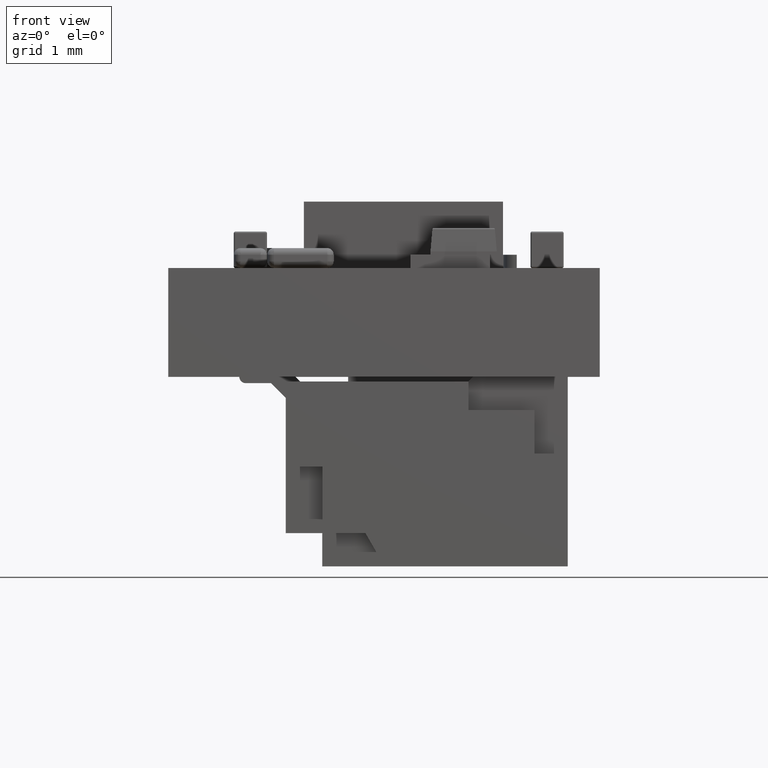
[diagram: clean part render]
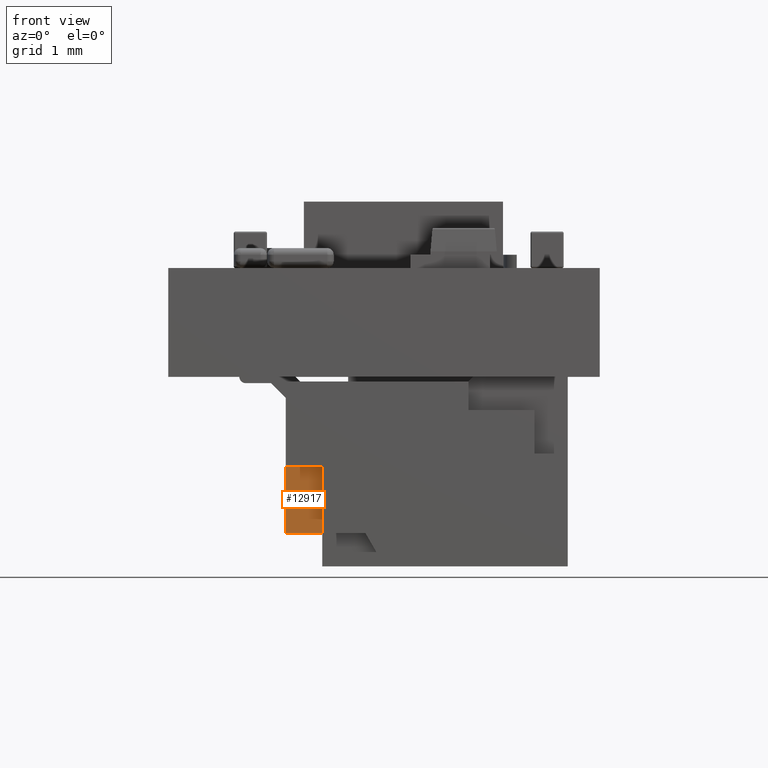
[diagram: same view with one face highlighted and labeled with its STEP entity id]
A machine part, front view. The second image highlights one B-rep face of the part: STEP entity #12917.
In plain terms, the highlighted planar face has unit normal (0, 1, 0).
Its self-contained STEP definition (entity closure, byte-faithful):
#10499 = VERTEX_POINT('',#10500);
#10500 = CARTESIAN_POINT('',(2.5,2.755,0.195));
#12760 = VERTEX_POINT('',#12761);
#12761 = CARTESIAN_POINT('',(2.5,1.755,0.195));
#12767 = EDGE_CURVE('',#12760,#10499,#12768,.T.);
#12768 = LINE('',#12769,#12770);
#12769 = CARTESIAN_POINT('',(2.5,2.755,0.195));
#12770 = VECTOR('',#12771,1.);
#12771 = DIRECTION('',(-5.605193857299E-045,1.,3.914088217711E-059));
#12893 = VERTEX_POINT('',#12894);
#12894 = CARTESIAN_POINT('',(2.5,1.755,-0.355));
#12900 = EDGE_CURVE('',#12893,#12760,#12901,.T.);
#12901 = LINE('',#12902,#12903);
#12902 = CARTESIAN_POINT('',(2.5,1.755,-0.355));
#12903 = VECTOR('',#12904,1.);
#12904 = DIRECTION('',(6.982966722219E-015,0.E+000,1.));
#12917 = ADVANCED_FACE('',(#12918),#12936,.F.);
#12918 = FACE_BOUND('',#12919,.T.);
#12919 = EDGE_LOOP('',(#12920,#12928,#12934,#12935));
#12920 = ORIENTED_EDGE('',*,*,#12921,.T.);
#12921 = EDGE_CURVE('',#12893,#12922,#12924,.T.);
#12922 = VERTEX_POINT('',#12923);
#12923 = CARTESIAN_POINT('',(2.5,2.755,-0.355));
#12924 = LINE('',#12925,#12926);
#12925 = CARTESIAN_POINT('',(2.5,3.255,-0.355));
#12926 = VECTOR('',#12927,1.);
#12927 = DIRECTION('',(2.480848139264E-029,1.,3.491483361109E-015));
#12928 = ORIENTED_EDGE('',*,*,#12929,.F.);
#12929 = EDGE_CURVE('',#10499,#12922,#12930,.T.);
#12930 = LINE('',#12931,#12932);
#12931 = CARTESIAN_POINT('',(2.5,2.755,-0.355));
#12932 = VECTOR('',#12933,1.);
#12933 = DIRECTION('',(-7.096596038087E-015,-0.E+000,-1.));
#12934 = ORIENTED_EDGE('',*,*,#12767,.F.);
#12935 = ORIENTED_EDGE('',*,*,#12900,.F.);
#12936 = PLANE('',#12937);
#12937 = AXIS2_PLACEMENT_3D('',#12938,#12939,#12940);
#12938 = CARTESIAN_POINT('',(2.5,2.755,-0.355));
#12939 = DIRECTION('',(-1.,-5.605193857299E-045,6.982966722219E-015));
#12940 = DIRECTION('',(6.982966722219E-015,0.E+000,1.));